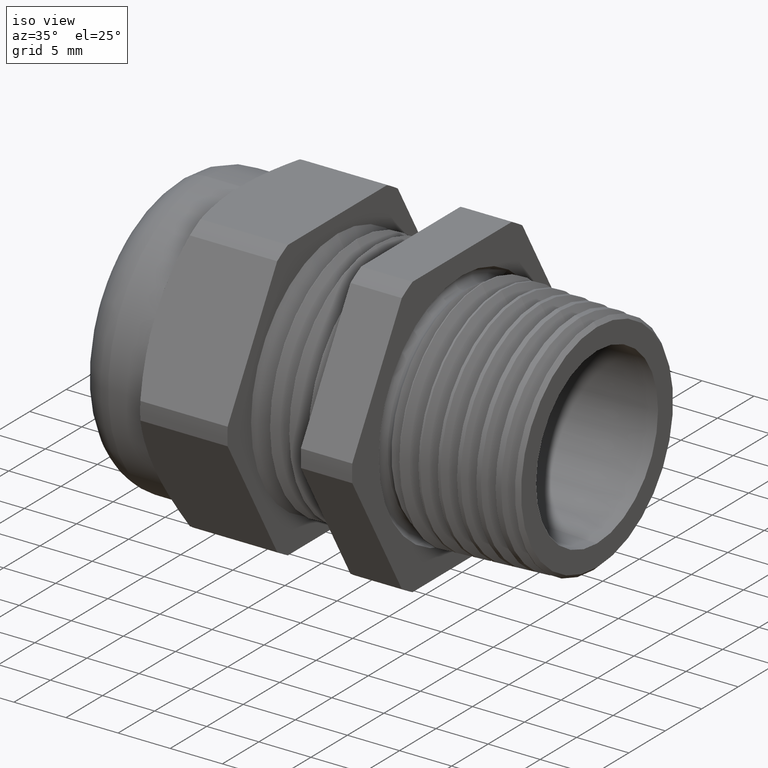
[diagram: clean part render]
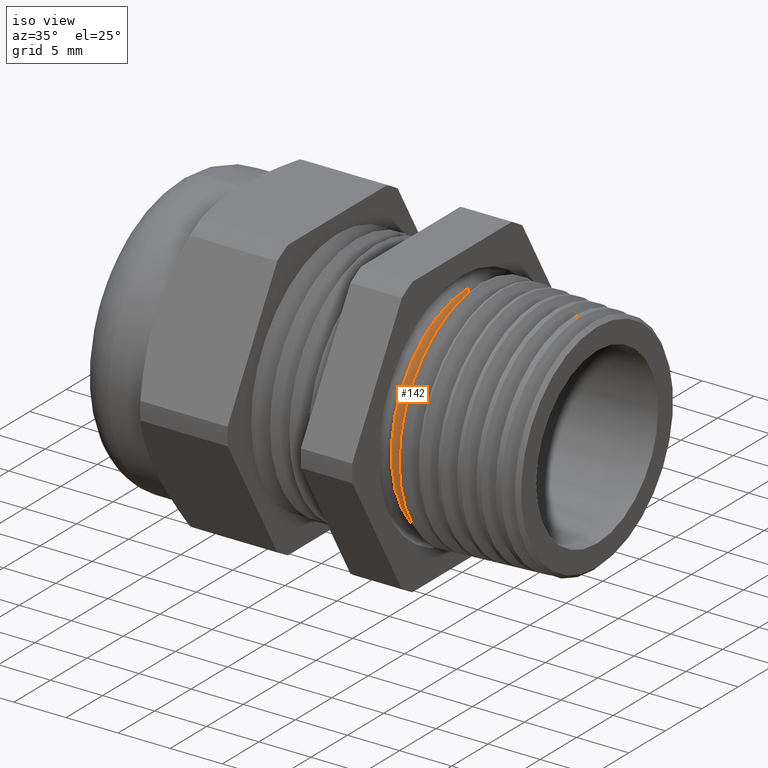
[diagram: same view with one face highlighted and labeled with its STEP entity id]
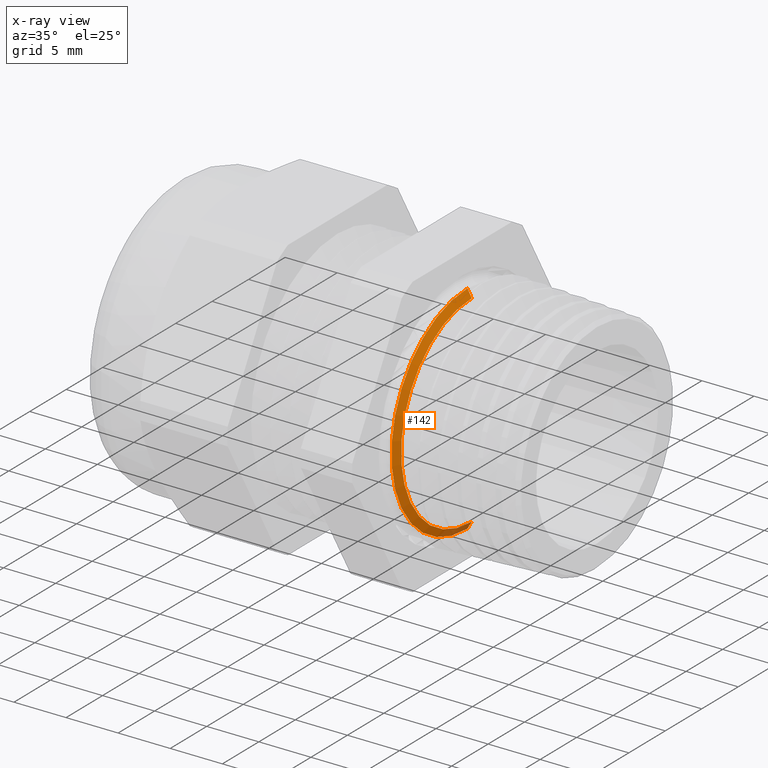
[diagram: x-ray of the same camera — body ghosted, the highlighted face saturated]
A machine part, iso view. The second image highlights one B-rep face of the part: STEP entity #142.
The next image is the same camera in x-ray: the body ghosted, the highlighted face saturated — about 6% of this face is hidden behind the body in this view.
In plain terms, the highlighted conical surface has half-angle 60 deg.
Its self-contained STEP definition (entity closure, byte-faithful):
#45 = EDGE_CURVE ( 'NONE', #928, #685, #1220, .T. ) ;
#100 = EDGE_CURVE ( 'NONE', #968, #671, #1368, .T. ) ;
#142 = ADVANCED_FACE ( 'NONE', ( #1412 ), #1411, .T. ) ;
#143 = EDGE_LOOP ( 'NONE', ( #144, #145, #147, #148 ) ) ;
#144 = ORIENTED_EDGE ( 'NONE', *, *, #45, .F. ) ;
#145 = ORIENTED_EDGE ( 'NONE', *, *, #146, .T. ) ;
#146 = EDGE_CURVE ( 'NONE', #928, #968, #1405, .T. ) ;
#147 = ORIENTED_EDGE ( 'NONE', *, *, #100, .T. ) ;
#148 = ORIENTED_EDGE ( 'NONE', *, *, #741, .T. ) ;
#671 = VERTEX_POINT ( 'NONE', #2305 ) ;
#685 = VERTEX_POINT ( 'NONE', #2340 ) ;
#741 = EDGE_CURVE ( 'NONE', #671, #685, #2432, .T. ) ;
#928 = VERTEX_POINT ( 'NONE', #2835 ) ;
#968 = VERTEX_POINT ( 'NONE', #2884 ) ;
#1214 = DIRECTION ( 'NONE',  ( -0.4999999999999938400, 1.060575238724911100E-016, -0.8660254037844420400 ) ) ;
#1215 = VECTOR ( 'NONE', #1214, 39.37007874015748900 ) ;
#1216 = CARTESIAN_POINT ( 'NONE',  ( 0.0000000000000000000, 5.449678256205722000E-017, -0.4450000000000000100 ) ) ;
#1220 = LINE ( 'NONE', #1216, #1215 ) ;
#1365 = DIRECTION ( 'NONE',  ( -0.4999999999999938400, 0.0000000000000000000, 0.8660254037844420400 ) ) ;
#1366 = VECTOR ( 'NONE', #1365, 39.37007874015748900 ) ;
#1367 = CARTESIAN_POINT ( 'NONE',  ( 0.0000000000000000000, 0.0000000000000000000, 0.4450000000000000100 ) ) ;
#1368 = LINE ( 'NONE', #1367, #1366 ) ;
#1402 = DIRECTION ( 'NONE',  ( 0.0000000000000000000, 0.0000000000000000000, 1.000000000000000000 ) ) ;
#1403 = DIRECTION ( 'NONE',  ( -1.000000000000000000, 0.0000000000000000000, 0.0000000000000000000 ) ) ;
#1404 = AXIS2_PLACEMENT_3D ( 'NONE', #1410, #1403, #1402 ) ;
#1405 = CIRCLE ( 'NONE', #1404, 0.3814809735032225800 ) ;
#1406 = DIRECTION ( 'NONE',  ( 0.0000000000000000000, 0.0000000000000000000, 1.000000000000000000 ) ) ;
#1407 = DIRECTION ( 'NONE',  ( -1.000000000000000000, 0.0000000000000000000, 0.0000000000000000000 ) ) ;
#1408 = CARTESIAN_POINT ( 'NONE',  ( 0.0000000000000000000, 0.0000000000000000000, 0.0000000000000000000 ) ) ;
#1409 = AXIS2_PLACEMENT_3D ( 'NONE', #1408, #1407, #1406 ) ;
#1410 = CARTESIAN_POINT ( 'NONE',  ( 0.03667272704657684900, 0.0000000000000000000, 0.0000000000000000000 ) ) ;
#1411 = CONICAL_SURFACE ( 'NONE', #1409, 0.4450000000000000100, 1.047197551196604700 ) ;
#1412 = FACE_OUTER_BOUND ( 'NONE', #143, .T. ) ;
#2305 = CARTESIAN_POINT ( 'NONE',  ( 0.02011669327523420100, 0.0000000000000000000, 0.4101568651670146600 ) ) ;
#2340 = CARTESIAN_POINT ( 'NONE',  ( 0.02011669327523420100, 5.022972920750970400E-017, -0.4101568651670146600 ) ) ;
#2429 = DIRECTION ( 'NONE',  ( 0.0000000000000000000, 0.0000000000000000000, 1.000000000000000000 ) ) ;
#2430 = DIRECTION ( 'NONE',  ( 1.000000000000000000, 0.0000000000000000000, 0.0000000000000000000 ) ) ;
#2431 = AXIS2_PLACEMENT_3D ( 'NONE', #2438, #2430, #2429 ) ;
#2432 = CIRCLE ( 'NONE', #2431, 0.4101568651670146600 ) ;
#2438 = CARTESIAN_POINT ( 'NONE',  ( 0.02011669327523420100, 0.0000000000000000000, 0.0000000000000000000 ) ) ;
#2835 = CARTESIAN_POINT ( 'NONE',  ( 0.03667272704657684900, 4.847383726057174300E-017, -0.3814809735032225800 ) ) ;
#2884 = CARTESIAN_POINT ( 'NONE',  ( 0.03667272704657684900, 0.0000000000000000000, 0.3814809735032225800 ) ) ;